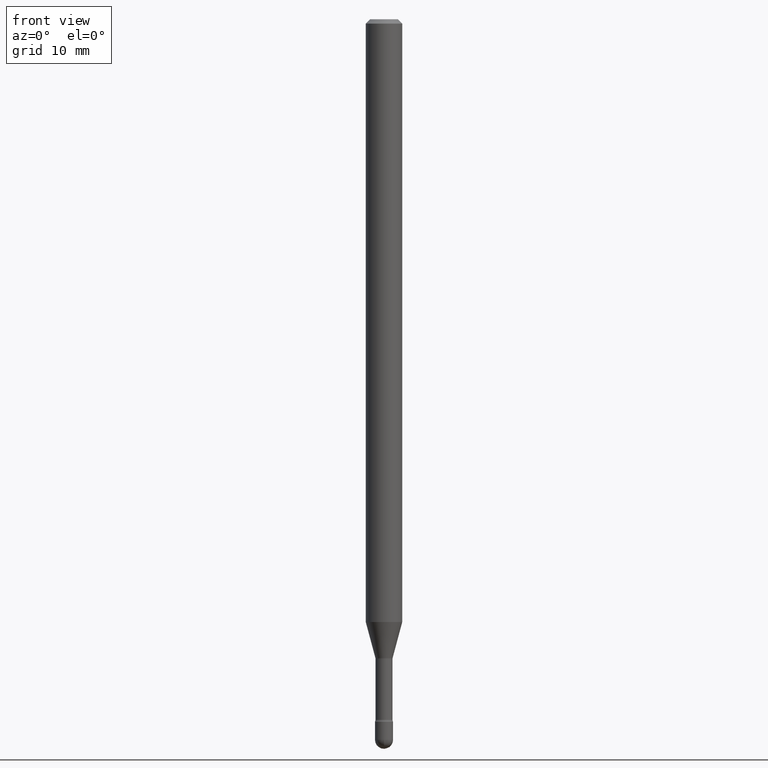
[diagram: clean part render]
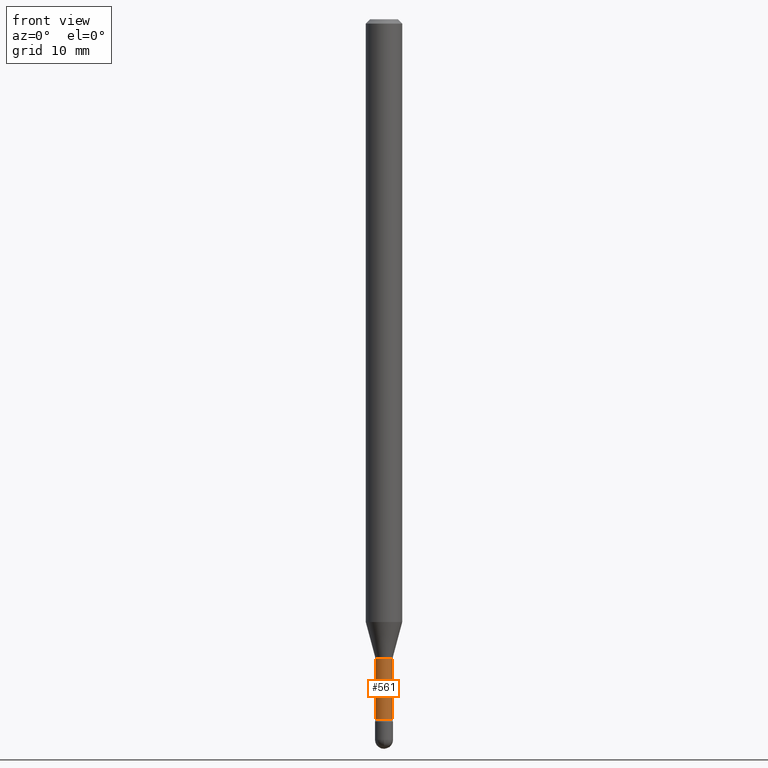
[diagram: same view with one face highlighted and labeled with its STEP entity id]
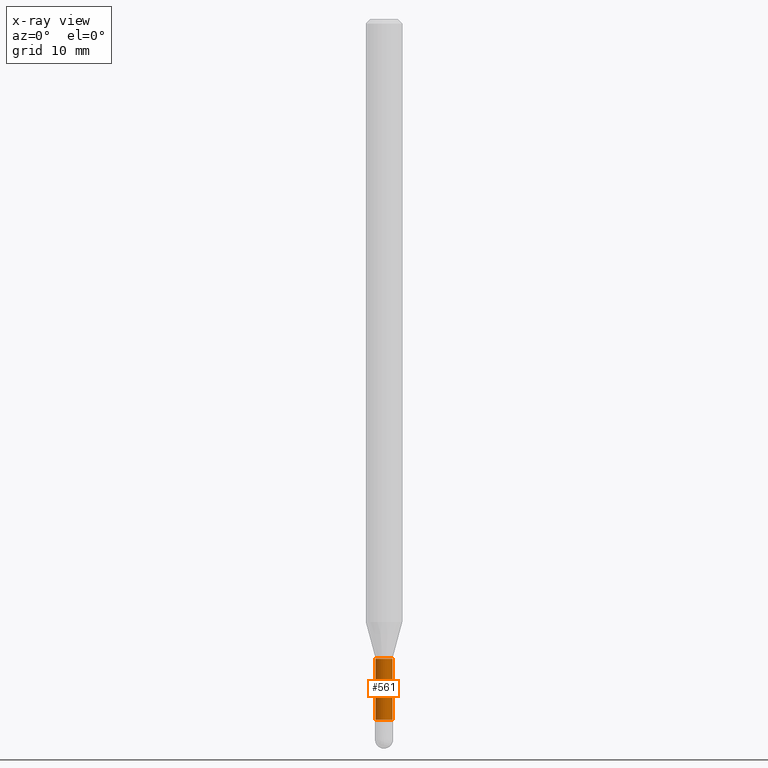
[diagram: x-ray of the same camera — body ghosted, the highlighted face saturated]
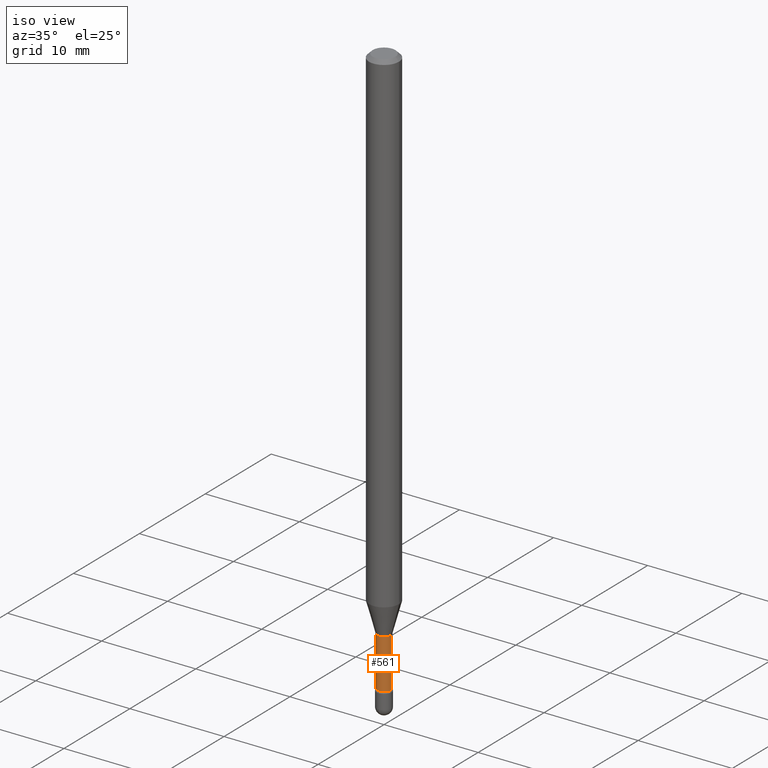
[diagram: same view with one face highlighted and labeled with its STEP entity id]
A machine part, front view. The second image highlights one B-rep face of the part: STEP entity #561.
The next image is the same camera in x-ray: the body ghosted, the highlighted face saturated — about 0% of this face is hidden behind the body in this view.
A second angle (iso view) of the same face is appended — the face is thin or edge-on in the first view.
In plain terms, the highlighted cylindrical surface (edge-blend (fillet) strip) has radius 0.7404 mm, axis along (-0, 0, 1).
Its self-contained STEP definition (entity closure, byte-faithful):
#45 = EDGE_LOOP ( 'NONE', ( #154, #103, #318, #248 ) ) ;
#50 = CARTESIAN_POINT ( 'NONE',  ( 5.360405966687044004E-29, -7.653239065644566278E-15, -2.191974787463811136 ) ) ;
#52 = EDGE_CURVE ( 'NONE', #359, #295, #240, .T. ) ;
#64 = VECTOR ( 'NONE', #316, 39.37007874015748143 ) ;
#72 = VERTEX_POINT ( 'NONE', #529 ) ;
#86 = DIRECTION ( 'NONE',  ( -2.445468806185136597E-29, 3.491481338843145583E-15, 1.000000000000000000 ) ) ;
#91 = FACE_OUTER_BOUND ( 'NONE', #45, .T. ) ;
#103 = ORIENTED_EDGE ( 'NONE', *, *, #524, .T. ) ;
#123 = CARTESIAN_POINT ( 'NONE',  ( -1.169113584055446105E-44, 1.669184350826100908E-30, 4.780733988912460139E-16 ) ) ;
#149 = EDGE_CURVE ( 'NONE', #72, #359, #502, .T. ) ;
#154 = ORIENTED_EDGE ( 'NONE', *, *, #149, .F. ) ;
#171 = DIRECTION ( 'NONE',  ( -2.445468806185136597E-29, 3.491481338843145583E-15, 1.000000000000000000 ) ) ;
#178 = EDGE_CURVE ( 'NONE', #241, #295, #543, .T. ) ;
#240 = CIRCLE ( 'NONE', #256, 0.02914999999999999883 ) ;
#241 = VERTEX_POINT ( 'NONE', #278 ) ;
#248 = ORIENTED_EDGE ( 'NONE', *, *, #52, .F. ) ;
#256 = AXIS2_PLACEMENT_3D ( 'NONE', #50, #171, #300 ) ;
#262 = CYLINDRICAL_SURFACE ( 'NONE', #412, 0.02915000000000000230 ) ;
#278 = CARTESIAN_POINT ( 'NONE',  ( 0.02915000000000000577, -8.582352759619256888E-15, -2.399783525791634897 ) ) ;
#295 = VERTEX_POINT ( 'NONE', #560 ) ;
#300 = DIRECTION ( 'NONE',  ( 1.000000000000000000, -6.982962677686268288E-15, 0.000000000000000000 ) ) ;
#316 = DIRECTION ( 'NONE',  ( -2.445468806185136877E-29, 3.491481338843145188E-15, 1.000000000000000000 ) ) ;
#318 = ORIENTED_EDGE ( 'NONE', *, *, #178, .T. ) ;
#349 = CIRCLE ( 'NONE', #389, 0.02915000000000000577 ) ;
#353 = CARTESIAN_POINT ( 'NONE',  ( -0.02914999999999999883, -7.808896024130564316E-15, -2.191974787463811136 ) ) ;
#359 = VERTEX_POINT ( 'NONE', #353 ) ;
#389 = AXIS2_PLACEMENT_3D ( 'NONE', #486, #86, #551 ) ;
#394 = DIRECTION ( 'NONE',  ( -2.445468806185136597E-29, 3.491481338843145583E-15, 1.000000000000000000 ) ) ;
#412 = AXIS2_PLACEMENT_3D ( 'NONE', #123, #394, #519 ) ;
#465 = CARTESIAN_POINT ( 'NONE',  ( -0.02915000000000000230, 2.071232074740708968E-16, 4.780733988912446334E-16 ) ) ;
#468 = VECTOR ( 'NONE', #510, 39.37007874015748143 ) ;
#486 = CARTESIAN_POINT ( 'NONE',  ( 5.868595753920427457E-29, -8.378799397564700895E-15, -2.399783525791634897 ) ) ;
#502 = LINE ( 'NONE', #465, #468 ) ;
#503 = CARTESIAN_POINT ( 'NONE',  ( 0.02915000000000000230, -2.035533620545530107E-16, 4.780733988912474930E-16 ) ) ;
#510 = DIRECTION ( 'NONE',  ( -2.445468806185136877E-29, 3.491481338843145188E-15, 1.000000000000000000 ) ) ;
#519 = DIRECTION ( 'NONE',  ( 1.000000000000000000, -6.982962677686266711E-15, 4.786146996491827037E-29 ) ) ;
#524 = EDGE_CURVE ( 'NONE', #72, #241, #349, .T. ) ;
#529 = CARTESIAN_POINT ( 'NONE',  ( -0.02915000000000000577, -8.177701762300226909E-15, -2.399783525791634897 ) ) ;
#543 = LINE ( 'NONE', #503, #64 ) ;
#551 = DIRECTION ( 'NONE',  ( 1.000000000000000000, -6.982962677686266711E-15, 0.000000000000000000 ) ) ;
#560 = CARTESIAN_POINT ( 'NONE',  ( 0.02914999999999999883, -7.856792427699122271E-15, -2.191974787463811136 ) ) ;
#561 = ADVANCED_FACE ( 'NONE', ( #91 ), #262, .T. ) ;